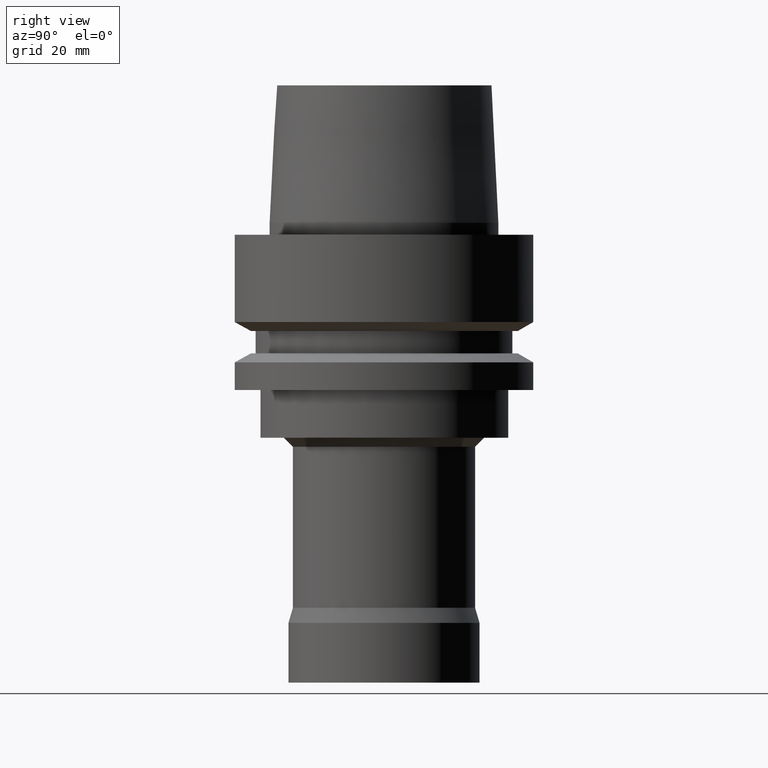
[diagram: clean part render]
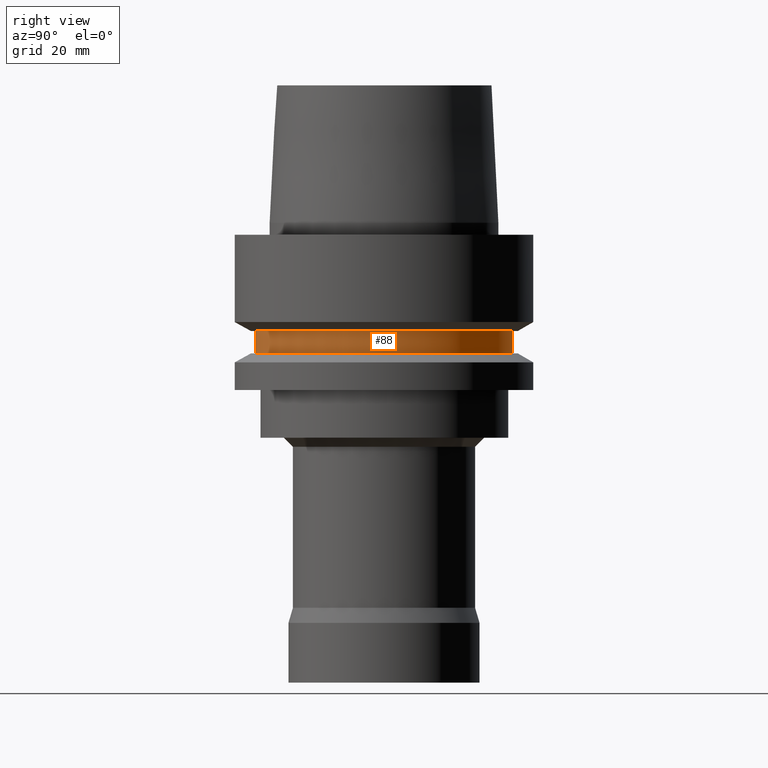
[diagram: same view with one face highlighted and labeled with its STEP entity id]
A machine part, right view. The second image highlights one B-rep face of the part: STEP entity #88.
In plain terms, the highlighted cylindrical surface (bore or boss wall) has radius 21.5 mm, axis along (-0, -0, 1).
Its self-contained STEP definition (entity closure, byte-faithful):
#88=ADVANCED_FACE('',(#132,#133),#134,.T.);
#132=FACE_BOUND('',#187,.T.);
#133=FACE_BOUND('',#188,.T.);
#134=CYLINDRICAL_SURFACE('',#189,21.5);
#187=EDGE_LOOP('',(#268));
#188=EDGE_LOOP('',(#269));
#189=AXIS2_PLACEMENT_3D('',#270,#271,#272);
#268=ORIENTED_EDGE('',*,*,#311,.F.);
#269=ORIENTED_EDGE('',*,*,#310,.T.);
#270=CARTESIAN_POINT('',(1.10218211923262E-015,2.20436423846524E-015,-18.0));
#271=DIRECTION('',(-6.12323399573677E-017,-1.22464679914735E-016,1.0));
#272=DIRECTION('',(-1.23259516440783E-032,1.0,1.22464679914735E-016));
#310=EDGE_CURVE('',#340,#340,#341,.T.);
#311=EDGE_CURVE('',#342,#342,#343,.T.);
#340=VERTEX_POINT('',#376);
#341=CIRCLE('',#377,21.5);
#342=VERTEX_POINT('',#378);
#343=CIRCLE('',#379,21.5);
#376=CARTESIAN_POINT('',(9.87371481812553E-016,21.5,-16.125));
#377=AXIS2_PLACEMENT_3D('',#424,#425,#426);
#378=CARTESIAN_POINT('',(1.21699275665268E-015,21.5,-19.875));
#379=AXIS2_PLACEMENT_3D('',#427,#428,#429);
#424=CARTESIAN_POINT('',(9.87371481812554E-016,1.97474296362511E-015,-16.125));
#425=DIRECTION('',(6.12323399573677E-017,1.22464679914735E-016,-1.0));
#426=DIRECTION('',(-1.23259516440783E-032,1.0,1.22464679914735E-016));
#427=CARTESIAN_POINT('',(1.21699275665268E-015,2.43398551330536E-015,-19.875));
#428=DIRECTION('',(6.12323399573677E-017,1.22464679914735E-016,-1.0));
#429=DIRECTION('',(-1.23259516440783E-032,1.0,1.22464679914735E-016));